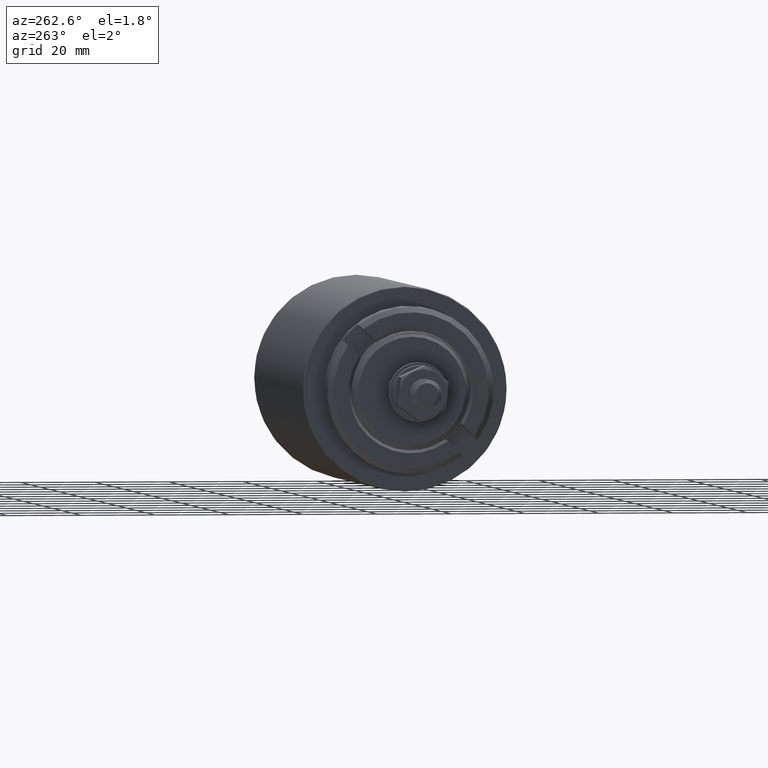
[diagram: clean part render]
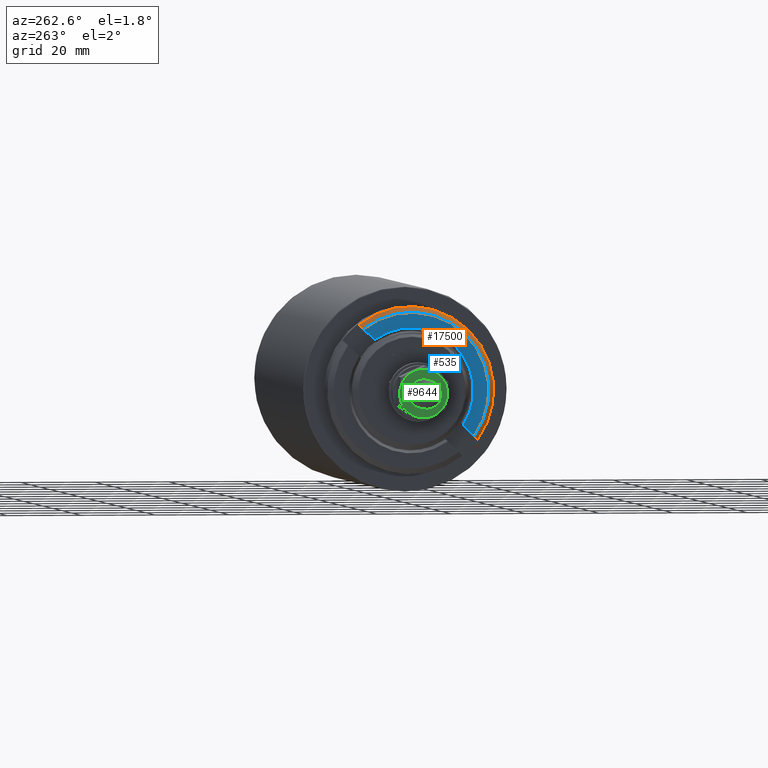
[diagram: same view with three faces highlighted in distinct colors, each labeled with its STEP entity id]
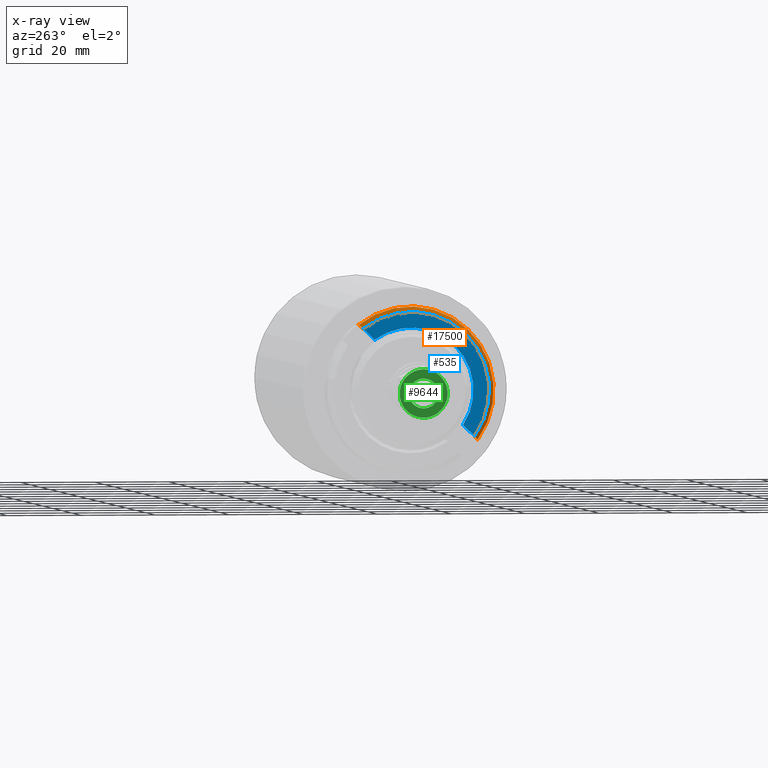
[diagram: x-ray of the same camera — body ghosted, the three highlighted faces saturated]
A machine part, auxiliary view with three faces highlighted in distinct colors.
The next image is the same camera in x-ray (body ghosted, the three faces saturated) — at least one of them is partly hidden behind the body in this view.
Their STEP definitions:

[orange] entity #17500 — the highlighted conical surface has half-angle 45 deg.
#748 = DIRECTION ( 'NONE',  ( 0.000000000000000000, 0.000000000000000000, -1.000000000000000000 ) ) ;
#834 = DIRECTION ( 'NONE',  ( -1.000000000000000000, 0.000000000000000000, 0.000000000000000000 ) ) ;
#1650 = FACE_OUTER_BOUND ( 'NONE', #7588, .T. ) ;
#1668 = AXIS2_PLACEMENT_3D ( 'NONE', #6239, #2636, #20069 ) ;
#2636 = DIRECTION ( 'NONE',  ( -1.000000000000000000, 0.000000000000000000, 0.000000000000000000 ) ) ;
#2638 = CARTESIAN_POINT ( 'NONE',  ( 6.500000000000005329, 0.000000000000000000, 0.000000000000000000 ) ) ;
#4063 = ORIENTED_EDGE ( 'NONE', *, *, #23278, .F. ) ;
#4326 = DIRECTION ( 'NONE',  ( 0.000000000000000000, 0.000000000000000000, -1.000000000000000000 ) ) ;
#4845 = CARTESIAN_POINT ( 'NONE',  ( 6.500000000000005329, 3.000000000000000000, -22.29910312097775815 ) ) ;
#5995 = CARTESIAN_POINT ( 'NONE',  ( 8.000000000000000000, 3.000000000000000000, 20.78460969082653520 ) ) ;
#6234 = AXIS2_PLACEMENT_3D ( 'NONE', #6785, #14613, #748 ) ;
#6239 = CARTESIAN_POINT ( 'NONE',  ( 8.000000000000000000, 0.000000000000000000, 0.000000000000000000 ) ) ;
#6271 = CIRCLE ( 'NONE', #12444, 22.50000000000000355 ) ;
#6350 = CARTESIAN_POINT ( 'NONE',  ( 6.500000000000007105, 3.000000000000000000, 22.29910312097775815 ) ) ;
#6785 = CARTESIAN_POINT ( 'NONE',  ( 8.000000000000000000, 0.000000000000000000, 0.000000000000000000 ) ) ;
#7588 = EDGE_LOOP ( 'NONE', ( #8096, #10687, #10586, #4063 ) ) ;
#8096 = ORIENTED_EDGE ( 'NONE', *, *, #22915, .F. ) ;
#8428 = B_SPLINE_CURVE_WITH_KNOTS ( 'NONE', 3,
 ( #4845, #20085, #8429, #14704 ),
 .UNSPECIFIED., .F., .F.,
 ( 4, 4 ),
 ( 0.03828285396026921000, 0.04041444699140040592 ),
 .UNSPECIFIED. ) ;
#8429 = CARTESIAN_POINT ( 'NONE',  ( 7.500175201234513089, 3.000000000000000000, -21.28961415952761627 ) ) ;
#8855 = EDGE_CURVE ( 'NONE', #25051, #19023, #10438, .T. ) ;
#10438 = B_SPLINE_CURVE_WITH_KNOTS ( 'NONE', 3,
 ( #5995, #14061, #17778, #6350 ),
 .UNSPECIFIED., .F., .F.,
 ( 4, 4 ),
 ( 0.09596852639480281388, 0.09810548725691579930 ),
 .UNSPECIFIED. ) ;
#10586 = ORIENTED_EDGE ( 'NONE', *, *, #8855, .F. ) ;
#10687 = ORIENTED_EDGE ( 'NONE', *, *, #20688, .F. ) ;
#12323 = CONICAL_SURFACE ( 'NONE', #1668, 21.00000000000000355, 0.7853981633974495002 ) ;
#12444 = AXIS2_PLACEMENT_3D ( 'NONE', #2638, #834, #4326 ) ;
#14024 = CARTESIAN_POINT ( 'NONE',  ( 8.000000000000000000, 3.000000000000000000, -20.78460969082653520 ) ) ;
#14061 = CARTESIAN_POINT ( 'NONE',  ( 7.500174779899014155, 3.000000000000000000, 21.28961458522940120 ) ) ;
#14188 = CARTESIAN_POINT ( 'NONE',  ( 8.000000000000000000, 3.000000000000000000, 20.78460969082653520 ) ) ;
#14613 = DIRECTION ( 'NONE',  ( 1.000000000000000000, 0.000000000000000000, 0.000000000000000000 ) ) ;
#14704 = CARTESIAN_POINT ( 'NONE',  ( 8.000000000000000000, 3.000000000000000000, -20.78460969082653520 ) ) ;
#17500 = ADVANCED_FACE ( 'NONE', ( #1650 ), #12323, .T. ) ;
#17778 = CARTESIAN_POINT ( 'NONE',  ( 7.000163019431329126, 3.000000000000000000, 21.79443403737600704 ) ) ;
#18097 = CIRCLE ( 'NONE', #6234, 21.00000000000000355 ) ;
#19023 = VERTEX_POINT ( 'NONE', #19681 ) ;
#19681 = CARTESIAN_POINT ( 'NONE',  ( 6.500000000000007105, 3.000000000000000000, 22.29910312097775815 ) ) ;
#20069 = DIRECTION ( 'NONE',  ( 0.000000000000000000, 0.000000000000000000, 1.000000000000000000 ) ) ;
#20085 = CARTESIAN_POINT ( 'NONE',  ( 7.000163412682537611, 3.000000000000000000, -21.79443364058192856 ) ) ;
#20442 = VERTEX_POINT ( 'NONE', #14024 ) ;
#20688 = EDGE_CURVE ( 'NONE', #19023, #21799, #6271, .T. ) ;
#21799 = VERTEX_POINT ( 'NONE', #22520 ) ;
#22520 = CARTESIAN_POINT ( 'NONE',  ( 6.500000000000005329, 3.000000000000000000, -22.29910312097775815 ) ) ;
#22915 = EDGE_CURVE ( 'NONE', #21799, #20442, #8428, .T. ) ;
#23278 = EDGE_CURVE ( 'NONE', #20442, #25051, #18097, .T. ) ;
#25051 = VERTEX_POINT ( 'NONE', #14188 ) ;

[blue] entity #535 — the highlighted planar face has unit normal (-1, 0, -0).
#535 = ADVANCED_FACE ( 'NONE', ( #18414 ), #853, .T. ) ;
#748 = DIRECTION ( 'NONE',  ( 0.000000000000000000, 0.000000000000000000, -1.000000000000000000 ) ) ;
#853 = PLANE ( 'NONE',  #4590 ) ;
#1022 = DIRECTION ( 'NONE',  ( -1.000000000000000000, -0.000000000000000000, -0.000000000000000000 ) ) ;
#1862 = ORIENTED_EDGE ( 'NONE', *, *, #23278, .T. ) ;
#2698 = DIRECTION ( 'NONE',  ( -0.000000000000000000, -0.000000000000000000, 1.000000000000000000 ) ) ;
#3219 = CARTESIAN_POINT ( 'NONE',  ( 8.000000000000000000, 0.000000000000000000, 0.000000000000000000 ) ) ;
#4590 = AXIS2_PLACEMENT_3D ( 'NONE', #8685, #20220, #18162 ) ;
#4889 = CARTESIAN_POINT ( 'NONE',  ( 8.000000000000000000, 3.000000000000000000, 22.99999999999999289 ) ) ;
#5019 = DIRECTION ( 'NONE',  ( -0.000000000000000000, -0.000000000000000000, 1.000000000000000000 ) ) ;
#5269 = CARTESIAN_POINT ( 'NONE',  ( 8.000000000000000000, 3.000000000000000000, 16.58078707420126818 ) ) ;
#5581 = VERTEX_POINT ( 'NONE', #5269 ) ;
#6234 = AXIS2_PLACEMENT_3D ( 'NONE', #6785, #14613, #748 ) ;
#6785 = CARTESIAN_POINT ( 'NONE',  ( 8.000000000000000000, 0.000000000000000000, 0.000000000000000000 ) ) ;
#8191 = CIRCLE ( 'NONE', #15962, 16.84999999999999787 ) ;
#8615 = ORIENTED_EDGE ( 'NONE', *, *, #15616, .F. ) ;
#8685 = CARTESIAN_POINT ( 'NONE',  ( 8.000000000000000000, 0.000000000000000000, 0.000000000000000000 ) ) ;
#9026 = VECTOR ( 'NONE', #5019, 1000.000000000000000 ) ;
#12024 = EDGE_LOOP ( 'NONE', ( #8615, #1862, #23893, #21929 ) ) ;
#12592 = CARTESIAN_POINT ( 'NONE',  ( 8.000000000000000000, 3.000000000000000000, 22.99999999999999289 ) ) ;
#13116 = VECTOR ( 'NONE', #2698, 1000.000000000000000 ) ;
#14024 = CARTESIAN_POINT ( 'NONE',  ( 8.000000000000000000, 3.000000000000000000, -20.78460969082653520 ) ) ;
#14188 = CARTESIAN_POINT ( 'NONE',  ( 8.000000000000000000, 3.000000000000000000, 20.78460969082653520 ) ) ;
#14613 = DIRECTION ( 'NONE',  ( 1.000000000000000000, 0.000000000000000000, 0.000000000000000000 ) ) ;
#14626 = LINE ( 'NONE', #4889, #13116 ) ;
#15008 = LINE ( 'NONE', #12592, #9026 ) ;
#15587 = EDGE_CURVE ( 'NONE', #5581, #25051, #15008, .T. ) ;
#15616 = EDGE_CURVE ( 'NONE', #20442, #17348, #14626, .T. ) ;
#15702 = EDGE_CURVE ( 'NONE', #5581, #17348, #8191, .T. ) ;
#15962 = AXIS2_PLACEMENT_3D ( 'NONE', #3219, #1022, #20771 ) ;
#17348 = VERTEX_POINT ( 'NONE', #19587 ) ;
#18097 = CIRCLE ( 'NONE', #6234, 21.00000000000000355 ) ;
#18162 = DIRECTION ( 'NONE',  ( 0.000000000000000000, 0.000000000000000000, -1.000000000000000000 ) ) ;
#18414 = FACE_OUTER_BOUND ( 'NONE', #12024, .T. ) ;
#19587 = CARTESIAN_POINT ( 'NONE',  ( 8.000000000000000000, 3.000000000000000000, -16.58078707420126818 ) ) ;
#20220 = DIRECTION ( 'NONE',  ( 1.000000000000000000, 0.000000000000000000, 0.000000000000000000 ) ) ;
#20442 = VERTEX_POINT ( 'NONE', #14024 ) ;
#20771 = DIRECTION ( 'NONE',  ( 0.000000000000000000, 0.000000000000000000, -1.000000000000000000 ) ) ;
#21929 = ORIENTED_EDGE ( 'NONE', *, *, #15702, .T. ) ;
#23278 = EDGE_CURVE ( 'NONE', #20442, #25051, #18097, .T. ) ;
#23893 = ORIENTED_EDGE ( 'NONE', *, *, #15587, .F. ) ;
#25051 = VERTEX_POINT ( 'NONE', #14188 ) ;

[green] entity #9644 — the highlighted planar face has unit normal (1, 0, 0).
#494 = CIRCLE ( 'NONE', #2958, 6.500000000000001776 ) ;
#719 = DIRECTION ( 'NONE',  ( -0.000000000000000000, -1.000000000000000000, 0.000000000000000000 ) ) ;
#899 = AXIS2_PLACEMENT_3D ( 'NONE', #9247, #7302, #22824 ) ;
#1143 = FACE_OUTER_BOUND ( 'NONE', #24973, .T. ) ;
#1145 = DIRECTION ( 'NONE',  ( 0.000000000000000000, 0.000000000000000000, 1.000000000000000000 ) ) ;
#1811 = CIRCLE ( 'NONE', #16945, 4.000000000000000000 ) ;
#1816 = CARTESIAN_POINT ( 'NONE',  ( 0.000000000000000000, -3.250000000000000000, 0.000000000000000000 ) ) ;
#2017 = CARTESIAN_POINT ( 'NONE',  ( 0.000000000000000000, -3.250000000000000000, 0.000000000000000000 ) ) ;
#2094 = EDGE_CURVE ( 'NONE', #9969, #3972, #17580, .T. ) ;
#2561 = ORIENTED_EDGE ( 'NONE', *, *, #22337, .T. ) ;
#2609 = CARTESIAN_POINT ( 'NONE',  ( -3.250000000000001776, -3.250000000000000000, 5.629165124598852543 ) ) ;
#2650 = CARTESIAN_POINT ( 'NONE',  ( 0.000000000000000000, -3.250000000000000000, 0.000000000000000000 ) ) ;
#2717 = EDGE_CURVE ( 'NONE', #20527, #18338, #25372, .T. ) ;
#2748 = EDGE_CURVE ( 'NONE', #17105, #21442, #24124, .T. ) ;
#2958 = AXIS2_PLACEMENT_3D ( 'NONE', #2650, #10497, #10367 ) ;
#3132 = ORIENTED_EDGE ( 'NONE', *, *, #11532, .T. ) ;
#3212 = CARTESIAN_POINT ( 'NONE',  ( -6.500000000000001776, -3.250000000000000000, -3.752776749732580797 ) ) ;
#3446 = CARTESIAN_POINT ( 'NONE',  ( 3.250000000000002220, -3.250000000000000000, -5.629165124598852543 ) ) ;
#3497 = ORIENTED_EDGE ( 'NONE', *, *, #12575, .T. ) ;
#3545 = DIRECTION ( 'NONE',  ( 0.000000000000000000, 0.000000000000000000, 1.000000000000000000 ) ) ;
#3972 = VERTEX_POINT ( 'NONE', #5418 ) ;
#4449 = VERTEX_POINT ( 'NONE', #10255 ) ;
#4523 = ORIENTED_EDGE ( 'NONE', *, *, #23679, .T. ) ;
#5322 = DIRECTION ( 'NONE',  ( 0.000000000000000000, 1.000000000000000000, 0.000000000000000000 ) ) ;
#5384 = AXIS2_PLACEMENT_3D ( 'NONE', #11069, #20654, #9267 ) ;
#5418 = CARTESIAN_POINT ( 'NONE',  ( 4.898587196589412829E-16, -3.250000000000000000, 4.000000000000000000 ) ) ;
#5493 = AXIS2_PLACEMENT_3D ( 'NONE', #1816, #13506, #25177 ) ;
#6190 = EDGE_CURVE ( 'NONE', #4449, #21442, #21082, .T. ) ;
#6439 = CARTESIAN_POINT ( 'NONE',  ( 0.000000000000000000, -3.250000000000000000, 0.000000000000000000 ) ) ;
#6581 = CIRCLE ( 'NONE', #5384, 4.000000000000000000 ) ;
#6587 = EDGE_CURVE ( 'NONE', #22342, #9969, #24701, .T. ) ;
#6795 = DIRECTION ( 'NONE',  ( -0.000000000000000000, -1.000000000000000000, 0.000000000000000000 ) ) ;
#7302 = DIRECTION ( 'NONE',  ( -0.000000000000000000, -1.000000000000000000, 0.000000000000000000 ) ) ;
#7628 = EDGE_CURVE ( 'NONE', #21612, #22342, #6581, .T. ) ;
#8786 = AXIS2_PLACEMENT_3D ( 'NONE', #2017, #17785, #15739 ) ;
#8840 = EDGE_LOOP ( 'NONE', ( #22175, #19520, #10460, #3497 ) ) ;
#8982 = FACE_BOUND ( 'NONE', #8840, .T. ) ;
#9247 = CARTESIAN_POINT ( 'NONE',  ( 0.000000000000000000, -3.250000000000000000, 0.000000000000000000 ) ) ;
#9267 = DIRECTION ( 'NONE',  ( 0.000000000000000000, 0.000000000000000000, 1.000000000000000000 ) ) ;
#9644 = ADVANCED_FACE ( 'NONE', ( #1143, #8982 ), #15126, .F. ) ;
#9969 = VERTEX_POINT ( 'NONE', #18296 ) ;
#10255 = CARTESIAN_POINT ( 'NONE',  ( 3.250000000000002665, -3.250000000000000000, 5.629165124598852543 ) ) ;
#10367 = DIRECTION ( 'NONE',  ( 1.776356839400250465E-15, 0.000000000000000000, 1.000000000000000000 ) ) ;
#10460 = ORIENTED_EDGE ( 'NONE', *, *, #2094, .T. ) ;
#10497 = DIRECTION ( 'NONE',  ( -0.000000000000000000, -1.000000000000000000, 0.000000000000000000 ) ) ;
#10799 = DIRECTION ( 'NONE',  ( -8.881784197001252323E-16, 0.000000000000000000, 1.000000000000000000 ) ) ;
#11069 = CARTESIAN_POINT ( 'NONE',  ( 0.000000000000000000, -3.250000000000000000, 0.000000000000000000 ) ) ;
#11206 = CARTESIAN_POINT ( 'NONE',  ( 1.809086441532102851, -3.249999999999999112, -3.567521022652103913 ) ) ;
#11532 = EDGE_CURVE ( 'NONE', #18338, #20288, #11987, .T. ) ;
#11987 = CIRCLE ( 'NONE', #899, 6.500000000000001776 ) ;
#12575 = EDGE_CURVE ( 'NONE', #3972, #21612, #1811, .T. ) ;
#12673 = CARTESIAN_POINT ( 'NONE',  ( 0.000000000000000000, -3.250000000000000000, 0.000000000000000000 ) ) ;
#13154 = DIRECTION ( 'NONE',  ( 0.000000000000000000, 0.000000000000000000, 1.000000000000000000 ) ) ;
#13506 = DIRECTION ( 'NONE',  ( -0.000000000000000000, -1.000000000000000000, 0.000000000000000000 ) ) ;
#13898 = AXIS2_PLACEMENT_3D ( 'NONE', #14879, #6795, #1145 ) ;
#14225 = VERTEX_POINT ( 'NONE', #23027 ) ;
#14269 = DIRECTION ( 'NONE',  ( 0.000000000000000000, 1.000000000000000000, 0.000000000000000000 ) ) ;
#14321 = CARTESIAN_POINT ( 'NONE',  ( 3.801835597702859726, -3.250000000000000000, -1.243401016582879048 ) ) ;
#14863 = AXIS2_PLACEMENT_3D ( 'NONE', #21102, #20584, #3545 ) ;
#14879 = CARTESIAN_POINT ( 'NONE',  ( 0.000000000000000000, -3.250000000000000000, 0.000000000000000000 ) ) ;
#15001 = DIRECTION ( 'NONE',  ( 0.000000000000000000, 0.000000000000000000, 1.000000000000000000 ) ) ;
#15059 = CARTESIAN_POINT ( 'NONE',  ( 0.000000000000000000, -3.250000000000000000, 0.000000000000000000 ) ) ;
#15126 = PLANE ( 'NONE',  #24527 ) ;
#15315 = CIRCLE ( 'NONE', #5493, 6.500000000000001776 ) ;
#15739 = DIRECTION ( 'NONE',  ( 0.000000000000000000, 0.000000000000000000, 1.000000000000000000 ) ) ;
#16052 = AXIS2_PLACEMENT_3D ( 'NONE', #12673, #719, #18286 ) ;
#16945 = AXIS2_PLACEMENT_3D ( 'NONE', #15059, #5322, #13154 ) ;
#17061 = CARTESIAN_POINT ( 'NONE',  ( 0.000000000000000000, -3.250000000000000000, 0.000000000000000000 ) ) ;
#17105 = VERTEX_POINT ( 'NONE', #3446 ) ;
#17580 = CIRCLE ( 'NONE', #20837, 4.000000000000000000 ) ;
#17746 = CARTESIAN_POINT ( 'NONE',  ( -6.500000000000001776, -3.250000000000000000, 0.000000000000000000 ) ) ;
#17785 = DIRECTION ( 'NONE',  ( -0.000000000000000000, 1.000000000000000000, -0.000000000000000000 ) ) ;
#18142 = CARTESIAN_POINT ( 'NONE',  ( 0.000000000000000000, -3.250000000000000000, 6.500000000000001776 ) ) ;
#18286 = DIRECTION ( 'NONE',  ( 0.000000000000000000, 0.000000000000000000, 1.000000000000000000 ) ) ;
#18296 = CARTESIAN_POINT ( 'NONE',  ( 0.000000000000000000, -3.250000000000000000, -4.000000000000000000 ) ) ;
#18338 = VERTEX_POINT ( 'NONE', #2609 ) ;
#18354 = DIRECTION ( 'NONE',  ( 0.000000000000000000, 0.000000000000000000, 1.000000000000000000 ) ) ;
#18567 = CIRCLE ( 'NONE', #16052, 6.500000000000001776 ) ;
#19226 = AXIS2_PLACEMENT_3D ( 'NONE', #17061, #22440, #10799 ) ;
#19520 = ORIENTED_EDGE ( 'NONE', *, *, #6587, .T. ) ;
#19634 = ORIENTED_EDGE ( 'NONE', *, *, #2717, .T. ) ;
#20080 = CARTESIAN_POINT ( 'NONE',  ( 6.500000000000001776, -3.250000000000000000, -1.502314598737158834E-15 ) ) ;
#20288 = VERTEX_POINT ( 'NONE', #17746 ) ;
#20527 = VERTEX_POINT ( 'NONE', #18142 ) ;
#20584 = DIRECTION ( 'NONE',  ( 0.000000000000000000, 1.000000000000000000, 0.000000000000000000 ) ) ;
#20654 = DIRECTION ( 'NONE',  ( 0.000000000000000000, 1.000000000000000000, 0.000000000000000000 ) ) ;
#20837 = AXIS2_PLACEMENT_3D ( 'NONE', #6439, #14269, #18354 ) ;
#21082 = CIRCLE ( 'NONE', #8786, 6.500000000000001776 ) ;
#21102 = CARTESIAN_POINT ( 'NONE',  ( 0.000000000000000000, -3.250000000000000000, 0.000000000000000000 ) ) ;
#21442 = VERTEX_POINT ( 'NONE', #20080 ) ;
#21612 = VERTEX_POINT ( 'NONE', #14321 ) ;
#22175 = ORIENTED_EDGE ( 'NONE', *, *, #7628, .T. ) ;
#22251 = ORIENTED_EDGE ( 'NONE', *, *, #2748, .T. ) ;
#22337 = EDGE_CURVE ( 'NONE', #4449, #20527, #15315, .T. ) ;
#22342 = VERTEX_POINT ( 'NONE', #11206 ) ;
#22440 = DIRECTION ( 'NONE',  ( -0.000000000000000000, -1.000000000000000000, 0.000000000000000000 ) ) ;
#22819 = EDGE_CURVE ( 'NONE', #14225, #17105, #494, .T. ) ;
#22824 = DIRECTION ( 'NONE',  ( 0.000000000000000000, 0.000000000000000000, 1.000000000000000000 ) ) ;
#23027 = CARTESIAN_POINT ( 'NONE',  ( -3.250000000000000888, -3.250000000000000000, -5.629165124598852543 ) ) ;
#23679 = EDGE_CURVE ( 'NONE', #20288, #14225, #18567, .T. ) ;
#24124 = CIRCLE ( 'NONE', #19226, 6.500000000000001776 ) ;
#24402 = ORIENTED_EDGE ( 'NONE', *, *, #6190, .F. ) ;
#24527 = AXIS2_PLACEMENT_3D ( 'NONE', #3212, #24761, #15001 ) ;
#24701 = CIRCLE ( 'NONE', #14863, 4.000000000000000000 ) ;
#24756 = ORIENTED_EDGE ( 'NONE', *, *, #22819, .T. ) ;
#24761 = DIRECTION ( 'NONE',  ( 0.000000000000000000, 1.000000000000000000, -0.000000000000000000 ) ) ;
#24973 = EDGE_LOOP ( 'NONE', ( #2561, #19634, #3132, #4523, #24756, #22251, #24402 ) ) ;
#25177 = DIRECTION ( 'NONE',  ( 0.000000000000000000, 0.000000000000000000, 1.000000000000000000 ) ) ;
#25372 = CIRCLE ( 'NONE', #13898, 6.500000000000001776 ) ;